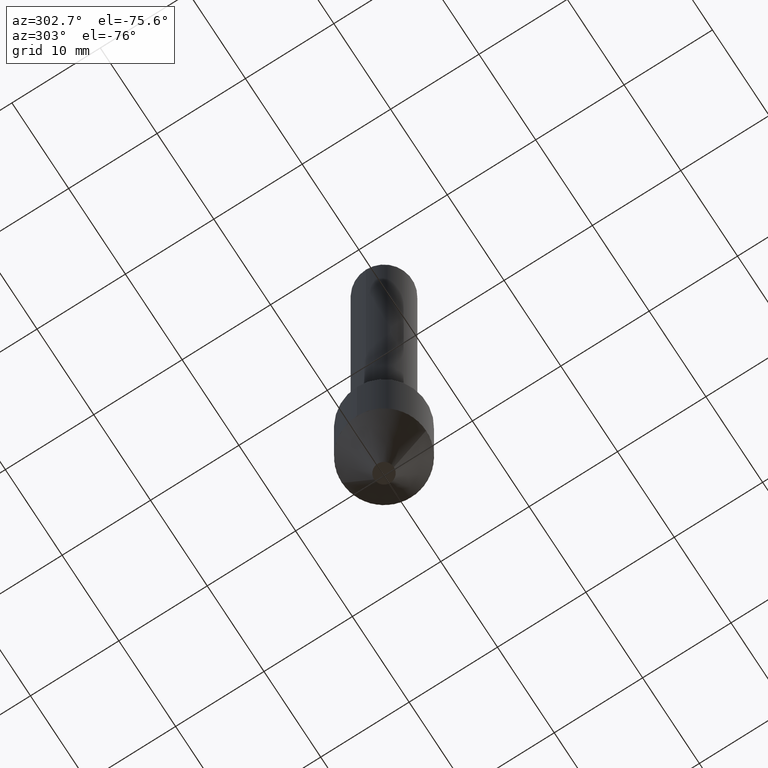
[diagram: clean part render]
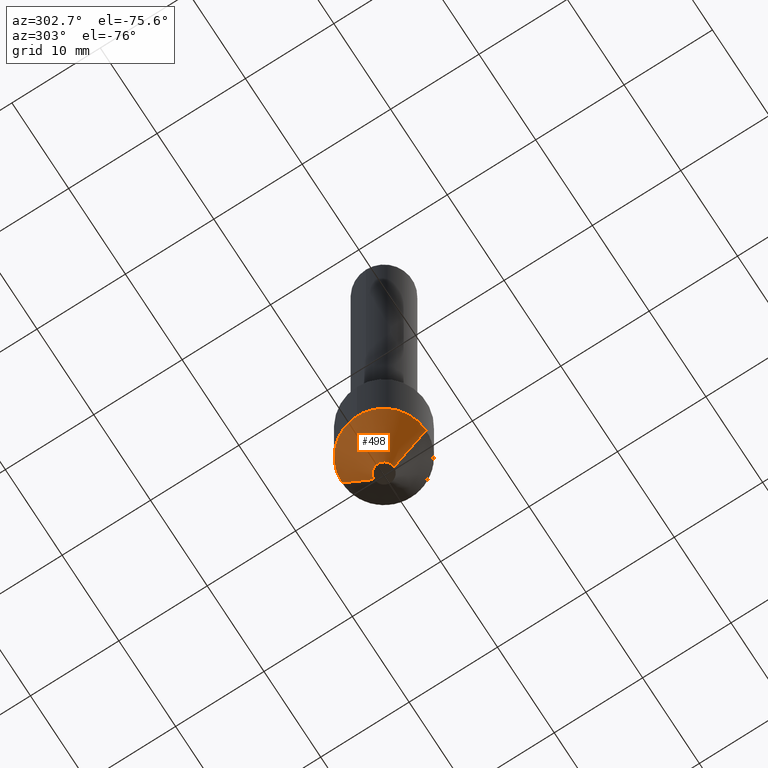
[diagram: same view with one face highlighted and labeled with its STEP entity id]
A machine part, auxiliary view. The second image highlights one B-rep face of the part: STEP entity #498.
In plain terms, the highlighted conical surface has half-angle 30 deg.
Its self-contained STEP definition (entity closure, byte-faithful):
#3 = DIRECTION ( 'NONE',  ( -6.982962677686265922E-15, -1.000000000000000000, 2.913971193241881950E-15 ) ) ;
#17 = VERTEX_POINT ( 'NONE', #435 ) ;
#30 = ORIENTED_EDGE ( 'NONE', *, *, #397, .F. ) ;
#32 = AXIS2_PLACEMENT_3D ( 'NONE', #242, #399, #36 ) ;
#36 = DIRECTION ( 'NONE',  ( -6.982962677686265922E-15, -1.000000000000000000, 2.913971193241881950E-15 ) ) ;
#46 = VECTOR ( 'NONE', #186, 39.37007874015748854 ) ;
#84 = CARTESIAN_POINT ( 'NONE',  ( 1.332267629550246224E-15, 0.1874999999999913125, -2.441450709113889950 ) ) ;
#89 = AXIS2_PLACEMENT_3D ( 'NONE', #425, #149, #468 ) ;
#132 = EDGE_LOOP ( 'NONE', ( #487, #511, #411, #30 ) ) ;
#149 = DIRECTION ( 'NONE',  ( -2.493412854807490386E-29, 3.422822732410152858E-15, 1.000000000000000000 ) ) ;
#165 = LINE ( 'NONE', #84, #470 ) ;
#186 = DIRECTION ( 'NONE',  ( -3.491481338843396046E-15, -0.5000000000000315303, 0.8660254037844203889 ) ) ;
#230 = VERTEX_POINT ( 'NONE', #417 ) ;
#240 = EDGE_CURVE ( 'NONE', #455, #230, #458, .T. ) ;
#242 = CARTESIAN_POINT ( 'NONE',  ( 5.914187489138859370E-29, -8.604910211756336085E-15, -2.441450709113889506 ) ) ;
#244 = CARTESIAN_POINT ( 'NONE',  ( -3.072503578181288162E-16, -0.04400000000000924005, -2.690000000000000391 ) ) ;
#277 = CIRCLE ( 'NONE', #89, 0.04399999999999978234 ) ;
#283 = FACE_OUTER_BOUND ( 'NONE', #132, .T. ) ;
#288 = DIRECTION ( 'NONE',  ( 3.552713678800723388E-15, 0.5000000000000374145, 0.8660254037844169472 ) ) ;
#303 = CONICAL_SURFACE ( 'NONE', #32, 0.1874999999999999167, 0.5235987755983387837 ) ;
#340 = VERTEX_POINT ( 'NONE', #510 ) ;
#342 = EDGE_CURVE ( 'NONE', #17, #455, #277, .T. ) ;
#389 = EDGE_CURVE ( 'NONE', #17, #340, #165, .T. ) ;
#397 = EDGE_CURVE ( 'NONE', #340, #230, #405, .T. ) ;
#399 = DIRECTION ( 'NONE',  ( -2.493412854807490386E-29, 3.422822732410152858E-15, 1.000000000000000000 ) ) ;
#405 = CIRCLE ( 'NONE', #444, 0.1874999999999999167 ) ;
#411 = ORIENTED_EDGE ( 'NONE', *, *, #240, .T. ) ;
#417 = CARTESIAN_POINT ( 'NONE',  ( -1.309305502066115646E-15, -0.1875000000000085765, -2.441450709113888617 ) ) ;
#425 = CARTESIAN_POINT ( 'NONE',  ( 6.533923486087575718E-29, -9.455650374725741126E-15, -2.690000000000000391 ) ) ;
#435 = CARTESIAN_POINT ( 'NONE',  ( 8.224532166423771421E-16, 0.04399999999999032463, -2.690000000000000391 ) ) ;
#442 = DIRECTION ( 'NONE',  ( -2.493412854807490386E-29, 3.422822732410152858E-15, 1.000000000000000000 ) ) ;
#444 = AXIS2_PLACEMENT_3D ( 'NONE', #482, #442, #3 ) ;
#455 = VERTEX_POINT ( 'NONE', #244 ) ;
#458 = LINE ( 'NONE', #503, #46 ) ;
#468 = DIRECTION ( 'NONE',  ( -6.982962677686265133E-15, -1.000000000000000000, 0.000000000000000000 ) ) ;
#470 = VECTOR ( 'NONE', #288, 39.37007874015748854 ) ;
#482 = CARTESIAN_POINT ( 'NONE',  ( 5.914187489138859370E-29, -8.604910211756336085E-15, -2.441450709113889506 ) ) ;
#487 = ORIENTED_EDGE ( 'NONE', *, *, #389, .F. ) ;
#498 = ADVANCED_FACE ( 'NONE', ( #283 ), #303, .T. ) ;
#503 = CARTESIAN_POINT ( 'NONE',  ( -1.309305502066115055E-15, -0.1875000000000085210, -2.441450709113888617 ) ) ;
#510 = CARTESIAN_POINT ( 'NONE',  ( 1.332267629550245633E-15, 0.1874999999999912292, -2.441450709113889950 ) ) ;
#511 = ORIENTED_EDGE ( 'NONE', *, *, #342, .T. ) ;